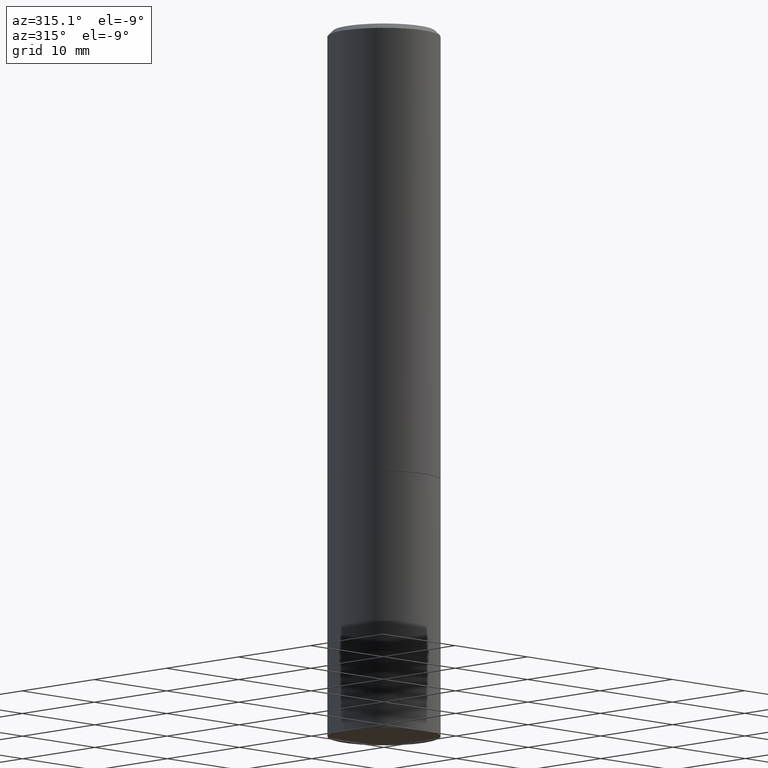
[diagram: clean part render]
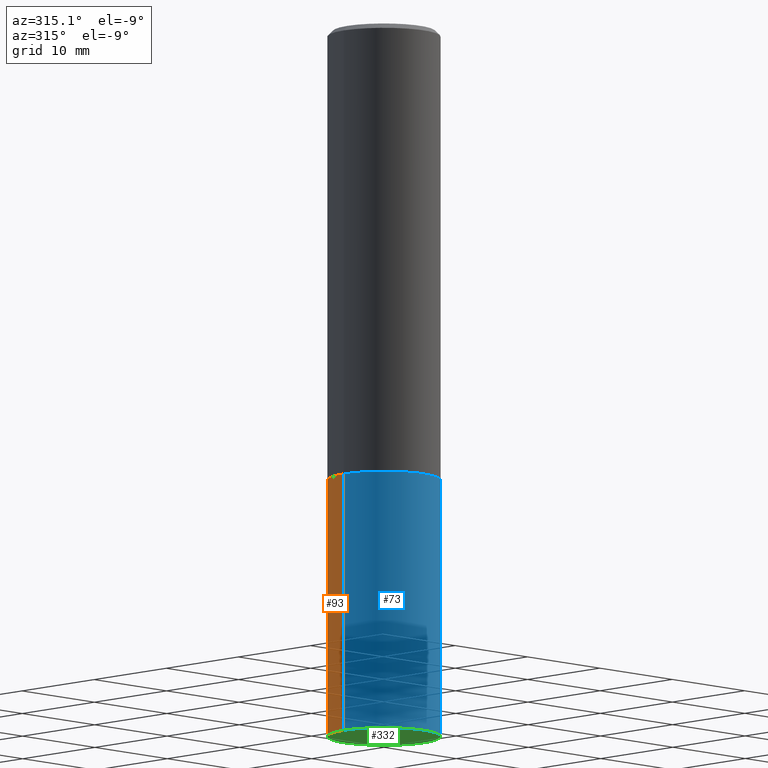
[diagram: same view with three faces highlighted in distinct colors, each labeled with its STEP entity id]
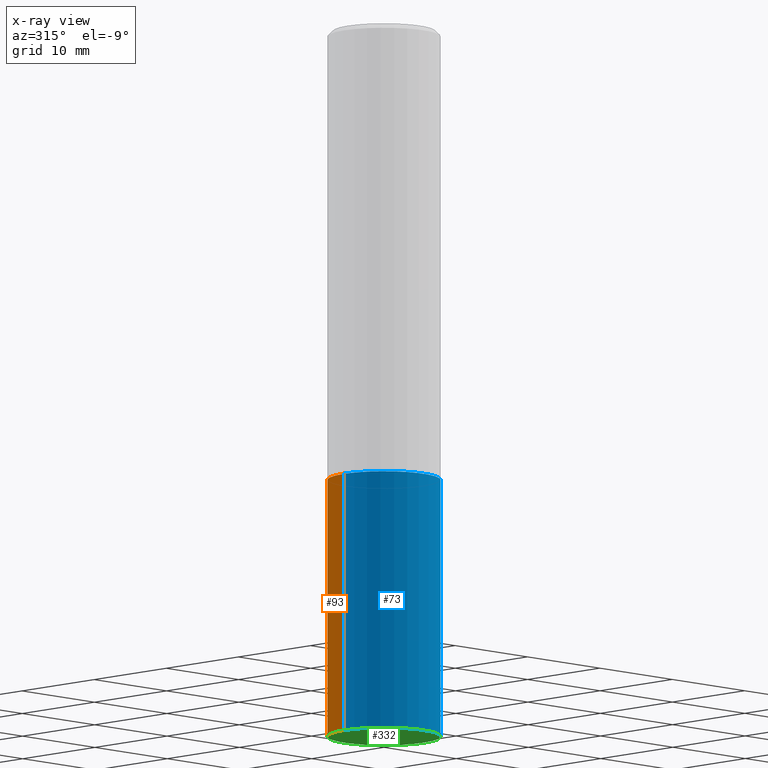
[diagram: x-ray of the same camera — body ghosted, the three highlighted faces saturated]
A machine part, auxiliary view with three faces highlighted in distinct colors.
The next image is the same camera in x-ray (body ghosted, the three faces saturated) — at least one of them is partly hidden behind the body in this view.
Their STEP definitions:

[orange] entity #93 — the highlighted cylindrical surface (partial cylindrical patch) has radius 5.5562 mm, axis along (-0, 0, 1).
#4 = AXIS2_PLACEMENT_3D ( 'NONE', #212, #124, #207 ) ;
#6 = DIRECTION ( 'NONE',  ( -2.445468806185136877E-29, 3.491481338843145188E-15, 1.000000000000000000 ) ) ;
#21 = VECTOR ( 'NONE', #6, 39.37007874015748143 ) ;
#25 = EDGE_CURVE ( 'NONE', #313, #309, #182, .T. ) ;
#40 = EDGE_CURVE ( 'NONE', #114, #313, #263, .T. ) ;
#49 = CARTESIAN_POINT ( 'NONE',  ( 0.2187500000000000000, -7.637615428719375514E-15, -1.750000000000000000 ) ) ;
#63 = FACE_OUTER_BOUND ( 'NONE', #222, .T. ) ;
#64 = AXIS2_PLACEMENT_3D ( 'NONE', #95, #327, #154 ) ;
#93 = ADVANCED_FACE ( 'NONE', ( #63 ), #350, .T. ) ;
#95 = CARTESIAN_POINT ( 'NONE',  ( 0.000000000000000000, 0.000000000000000000, 0.000000000000000000 ) ) ;
#104 = DIRECTION ( 'NONE',  ( -2.445468806185136877E-29, 3.491481338843145188E-15, 1.000000000000000000 ) ) ;
#113 = CARTESIAN_POINT ( 'NONE',  ( -0.2187500000000000000, -6.301520777921857714E-15, -2.750000000000000000 ) ) ;
#114 = VERTEX_POINT ( 'NONE', #329 ) ;
#119 = AXIS2_PLACEMENT_3D ( 'NONE', #130, #179, #243 ) ;
#122 = CARTESIAN_POINT ( 'NONE',  ( 0.2187500000000000000, -1.527523085743870843E-15, 1.066663669705360885E-29 ) ) ;
#124 = DIRECTION ( 'NONE',  ( -2.445468806185136597E-29, 3.491481338843145583E-15, 1.000000000000000000 ) ) ;
#130 = CARTESIAN_POINT ( 'NONE',  ( 6.725039217009124520E-29, -9.601573681818649859E-15, -2.750000000000000000 ) ) ;
#153 = EDGE_CURVE ( 'NONE', #114, #296, #157, .T. ) ;
#154 = DIRECTION ( 'NONE',  ( 1.000000000000000000, -6.982962677686266711E-15, 4.876176775795935232E-29 ) ) ;
#157 = CIRCLE ( 'NONE', #119, 0.2187500000000000000 ) ;
#179 = DIRECTION ( 'NONE',  ( -2.445468806185136597E-29, 3.491481338843145583E-15, 1.000000000000000000 ) ) ;
#182 = CIRCLE ( 'NONE', #4, 0.2187500000000000000 ) ;
#184 = LINE ( 'NONE', #303, #261 ) ;
#189 = EDGE_CURVE ( 'NONE', #296, #309, #184, .T. ) ;
#207 = DIRECTION ( 'NONE',  ( 1.000000000000000000, -6.982962677686267499E-15, 0.000000000000000000 ) ) ;
#212 = CARTESIAN_POINT ( 'NONE',  ( 4.279570410823988484E-29, -6.110092342975504671E-15, -1.750000000000000000 ) ) ;
#222 = EDGE_LOOP ( 'NONE', ( #307, #283, #317, #349 ) ) ;
#243 = DIRECTION ( 'NONE',  ( 1.000000000000000000, -6.982962677686262766E-15, 0.000000000000000000 ) ) ;
#261 = VECTOR ( 'NONE', #104, 39.37007874015748143 ) ;
#263 = LINE ( 'NONE', #122, #21 ) ;
#283 = ORIENTED_EDGE ( 'NONE', *, *, #189, .T. ) ;
#296 = VERTEX_POINT ( 'NONE', #113 ) ;
#303 = CARTESIAN_POINT ( 'NONE',  ( -0.2187500000000000000, 1.554312234475219157E-15, -1.076017050993260622E-29 ) ) ;
#307 = ORIENTED_EDGE ( 'NONE', *, *, #153, .T. ) ;
#309 = VERTEX_POINT ( 'NONE', #316 ) ;
#313 = VERTEX_POINT ( 'NONE', #49 ) ;
#316 = CARTESIAN_POINT ( 'NONE',  ( -0.2187500000000000000, -6.301520777921857714E-15, -1.750000000000000000 ) ) ;
#317 = ORIENTED_EDGE ( 'NONE', *, *, #25, .F. ) ;
#327 = DIRECTION ( 'NONE',  ( -2.445468806185136597E-29, 3.491481338843145583E-15, 1.000000000000000000 ) ) ;
#329 = CARTESIAN_POINT ( 'NONE',  ( 0.2187500000000000000, -1.112909676756251991E-14, -2.750000000000000000 ) ) ;
#349 = ORIENTED_EDGE ( 'NONE', *, *, #40, .F. ) ;
#350 = CYLINDRICAL_SURFACE ( 'NONE', #64, 0.2187500000000000000 ) ;

[blue] entity #73 — the highlighted cylindrical surface (partial cylindrical patch) has radius 5.5562 mm, axis along (-0, 0, 1).
#6 = DIRECTION ( 'NONE',  ( -2.445468806185136877E-29, 3.491481338843145188E-15, 1.000000000000000000 ) ) ;
#21 = VECTOR ( 'NONE', #6, 39.37007874015748143 ) ;
#22 = ORIENTED_EDGE ( 'NONE', *, *, #170, .T. ) ;
#24 = ORIENTED_EDGE ( 'NONE', *, *, #189, .F. ) ;
#34 = DIRECTION ( 'NONE',  ( 1.000000000000000000, -6.982962677686267499E-15, 0.000000000000000000 ) ) ;
#37 = AXIS2_PLACEMENT_3D ( 'NONE', #272, #147, #34 ) ;
#40 = EDGE_CURVE ( 'NONE', #114, #313, #263, .T. ) ;
#45 = CIRCLE ( 'NONE', #193, 0.2187500000000000000 ) ;
#49 = CARTESIAN_POINT ( 'NONE',  ( 0.2187500000000000000, -7.637615428719375514E-15, -1.750000000000000000 ) ) ;
#73 = ADVANCED_FACE ( 'NONE', ( #210 ), #346, .T. ) ;
#82 = ORIENTED_EDGE ( 'NONE', *, *, #40, .T. ) ;
#101 = DIRECTION ( 'NONE',  ( -2.445468806185136597E-29, 3.491481338843145583E-15, 1.000000000000000000 ) ) ;
#104 = DIRECTION ( 'NONE',  ( -2.445468806185136877E-29, 3.491481338843145188E-15, 1.000000000000000000 ) ) ;
#106 = EDGE_CURVE ( 'NONE', #309, #313, #298, .T. ) ;
#113 = CARTESIAN_POINT ( 'NONE',  ( -0.2187500000000000000, -6.301520777921857714E-15, -2.750000000000000000 ) ) ;
#114 = VERTEX_POINT ( 'NONE', #329 ) ;
#120 = EDGE_LOOP ( 'NONE', ( #24, #22, #82, #256 ) ) ;
#122 = CARTESIAN_POINT ( 'NONE',  ( 0.2187500000000000000, -1.527523085743870843E-15, 1.066663669705360885E-29 ) ) ;
#147 = DIRECTION ( 'NONE',  ( -2.445468806185136597E-29, 3.491481338843145583E-15, 1.000000000000000000 ) ) ;
#155 = CARTESIAN_POINT ( 'NONE',  ( 6.725039217009124520E-29, -9.601573681818649859E-15, -2.750000000000000000 ) ) ;
#170 = EDGE_CURVE ( 'NONE', #296, #114, #45, .T. ) ;
#184 = LINE ( 'NONE', #303, #261 ) ;
#189 = EDGE_CURVE ( 'NONE', #296, #309, #184, .T. ) ;
#193 = AXIS2_PLACEMENT_3D ( 'NONE', #155, #101, #248 ) ;
#210 = FACE_OUTER_BOUND ( 'NONE', #120, .T. ) ;
#248 = DIRECTION ( 'NONE',  ( 1.000000000000000000, -6.982962677686262766E-15, 0.000000000000000000 ) ) ;
#256 = ORIENTED_EDGE ( 'NONE', *, *, #106, .F. ) ;
#261 = VECTOR ( 'NONE', #104, 39.37007874015748143 ) ;
#263 = LINE ( 'NONE', #122, #21 ) ;
#271 = CARTESIAN_POINT ( 'NONE',  ( 0.000000000000000000, 0.000000000000000000, 0.000000000000000000 ) ) ;
#272 = CARTESIAN_POINT ( 'NONE',  ( 4.279570410823988484E-29, -6.110092342975504671E-15, -1.750000000000000000 ) ) ;
#294 = DIRECTION ( 'NONE',  ( -2.445468806185136597E-29, 3.491481338843145583E-15, 1.000000000000000000 ) ) ;
#296 = VERTEX_POINT ( 'NONE', #113 ) ;
#298 = CIRCLE ( 'NONE', #37, 0.2187500000000000000 ) ;
#303 = CARTESIAN_POINT ( 'NONE',  ( -0.2187500000000000000, 1.554312234475219157E-15, -1.076017050993260622E-29 ) ) ;
#309 = VERTEX_POINT ( 'NONE', #316 ) ;
#313 = VERTEX_POINT ( 'NONE', #49 ) ;
#316 = CARTESIAN_POINT ( 'NONE',  ( -0.2187500000000000000, -6.301520777921857714E-15, -1.750000000000000000 ) ) ;
#322 = DIRECTION ( 'NONE',  ( 1.000000000000000000, -6.982962677686266711E-15, 4.876176775795935232E-29 ) ) ;
#329 = CARTESIAN_POINT ( 'NONE',  ( 0.2187500000000000000, -1.112909676756251991E-14, -2.750000000000000000 ) ) ;
#340 = AXIS2_PLACEMENT_3D ( 'NONE', #271, #294, #322 ) ;
#346 = CYLINDRICAL_SURFACE ( 'NONE', #340, 0.2187500000000000000 ) ;

[green] entity #332 — the highlighted planar face has unit normal (0, -0, -1).
#17 = CARTESIAN_POINT ( 'NONE',  ( 1.527523085743937699E-15, 0.2187499999999903966, -2.750000000000000444 ) ) ;
#27 = PLANE ( 'NONE',  #109 ) ;
#45 = CIRCLE ( 'NONE', #193, 0.2187500000000000000 ) ;
#92 = ORIENTED_EDGE ( 'NONE', *, *, #170, .F. ) ;
#101 = DIRECTION ( 'NONE',  ( -2.445468806185136597E-29, 3.491481338843145583E-15, 1.000000000000000000 ) ) ;
#109 = AXIS2_PLACEMENT_3D ( 'NONE', #17, #284, #224 ) ;
#111 = FACE_OUTER_BOUND ( 'NONE', #342, .T. ) ;
#113 = CARTESIAN_POINT ( 'NONE',  ( -0.2187500000000000000, -6.301520777921857714E-15, -2.750000000000000000 ) ) ;
#114 = VERTEX_POINT ( 'NONE', #329 ) ;
#119 = AXIS2_PLACEMENT_3D ( 'NONE', #130, #179, #243 ) ;
#130 = CARTESIAN_POINT ( 'NONE',  ( 6.725039217009124520E-29, -9.601573681818649859E-15, -2.750000000000000000 ) ) ;
#153 = EDGE_CURVE ( 'NONE', #114, #296, #157, .T. ) ;
#155 = CARTESIAN_POINT ( 'NONE',  ( 6.725039217009124520E-29, -9.601573681818649859E-15, -2.750000000000000000 ) ) ;
#157 = CIRCLE ( 'NONE', #119, 0.2187500000000000000 ) ;
#170 = EDGE_CURVE ( 'NONE', #296, #114, #45, .T. ) ;
#179 = DIRECTION ( 'NONE',  ( -2.445468806185136597E-29, 3.491481338843145583E-15, 1.000000000000000000 ) ) ;
#193 = AXIS2_PLACEMENT_3D ( 'NONE', #155, #101, #248 ) ;
#224 = DIRECTION ( 'NONE',  ( -1.000000000000000000, 6.982962677686265922E-15, -4.876176775795935793E-29 ) ) ;
#243 = DIRECTION ( 'NONE',  ( 1.000000000000000000, -6.982962677686262766E-15, 0.000000000000000000 ) ) ;
#248 = DIRECTION ( 'NONE',  ( 1.000000000000000000, -6.982962677686262766E-15, 0.000000000000000000 ) ) ;
#252 = ORIENTED_EDGE ( 'NONE', *, *, #153, .F. ) ;
#284 = DIRECTION ( 'NONE',  ( 2.438088387897960049E-29, -3.491481338843145188E-15, -1.000000000000000000 ) ) ;
#296 = VERTEX_POINT ( 'NONE', #113 ) ;
#329 = CARTESIAN_POINT ( 'NONE',  ( 0.2187500000000000000, -1.112909676756251991E-14, -2.750000000000000000 ) ) ;
#332 = ADVANCED_FACE ( 'NONE', ( #111 ), #27, .T. ) ;
#342 = EDGE_LOOP ( 'NONE', ( #252, #92 ) ) ;